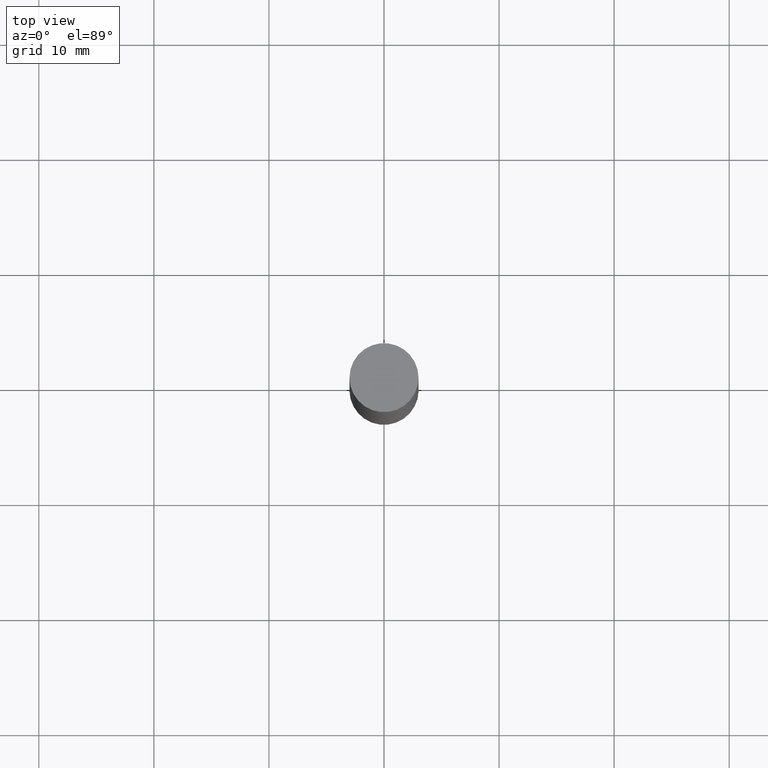
[diagram: clean part render]
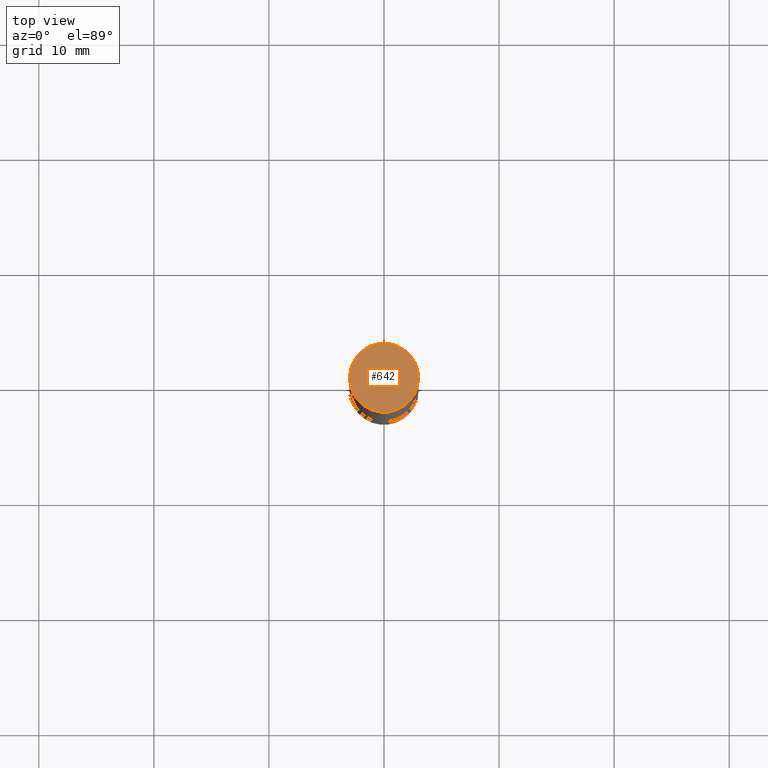
[diagram: same view with one face highlighted and labeled with its STEP entity id]
A machine part, top view. The second image highlights one B-rep face of the part: STEP entity #642.
In plain terms, the highlighted planar face has unit normal (0, 0, 1).
Its self-contained STEP definition (entity closure, byte-faithful):
#29 = DIRECTION ( 'NONE',  ( 2.438088387897959769E-29, 3.492890411551753071E-15, 1.000000000000000000 ) ) ;
#58 = CIRCLE ( 'NONE', #218, 0.1180999999999999966 ) ;
#76 = ORIENTED_EDGE ( 'NONE', *, *, #439, .T. ) ;
#91 = AXIS2_PLACEMENT_3D ( 'NONE', #345, #29, #246 ) ;
#93 = DIRECTION ( 'NONE',  ( 2.445468806185136597E-29, 3.492890411551752677E-15, 1.000000000000000000 ) ) ;
#150 = CARTESIAN_POINT ( 'NONE',  ( 0.1180999999999999966, -8.229404307151675296E-16, 5.463695987328526437E-16 ) ) ;
#190 = EDGE_LOOP ( 'NONE', ( #348, #76 ) ) ;
#191 = DIRECTION ( 'NONE',  ( 1.000000000000000000, -6.982962677686266711E-15, 0.000000000000000000 ) ) ;
#198 = PLANE ( 'NONE',  #91 ) ;
#217 = CIRCLE ( 'NONE', #492, 0.1180999999999999966 ) ;
#218 = AXIS2_PLACEMENT_3D ( 'NONE', #487, #243, #191 ) ;
#243 = DIRECTION ( 'NONE',  ( 2.445468806185136597E-29, 3.492890411551752677E-15, 1.000000000000000000 ) ) ;
#246 = DIRECTION ( 'NONE',  ( -1.000000000000000000, 6.982962677686265922E-15, -9.839502134516470631E-33 ) ) ;
#292 = FACE_OUTER_BOUND ( 'NONE', #190, .T. ) ;
#345 = CARTESIAN_POINT ( 'NONE',  ( 8.246878922348086105E-16, 0.1181000000000000105, 0.000000000000000000 ) ) ;
#346 = CARTESIAN_POINT ( 'NONE',  ( 6.065496279980994755E-29, 1.747461519580534218E-18, 5.463695987328526437E-16 ) ) ;
#348 = ORIENTED_EDGE ( 'NONE', *, *, #652, .T. ) ;
#439 = EDGE_CURVE ( 'NONE', #542, #635, #217, .T. ) ;
#452 = DIRECTION ( 'NONE',  ( 1.000000000000000000, -6.982962677686266711E-15, 0.000000000000000000 ) ) ;
#487 = CARTESIAN_POINT ( 'NONE',  ( 6.065496279980994755E-29, 1.747461519580534218E-18, 5.463695987328526437E-16 ) ) ;
#492 = AXIS2_PLACEMENT_3D ( 'NONE', #346, #93, #452 ) ;
#522 = CARTESIAN_POINT ( 'NONE',  ( -0.1180999999999999966, -1.304844015212474234E-17, 5.463695987328556019E-16 ) ) ;
#542 = VERTEX_POINT ( 'NONE', #522 ) ;
#635 = VERTEX_POINT ( 'NONE', #150 ) ;
#642 = ADVANCED_FACE ( 'NONE', ( #292 ), #198, .T. ) ;
#652 = EDGE_CURVE ( 'NONE', #635, #542, #58, .T. ) ;